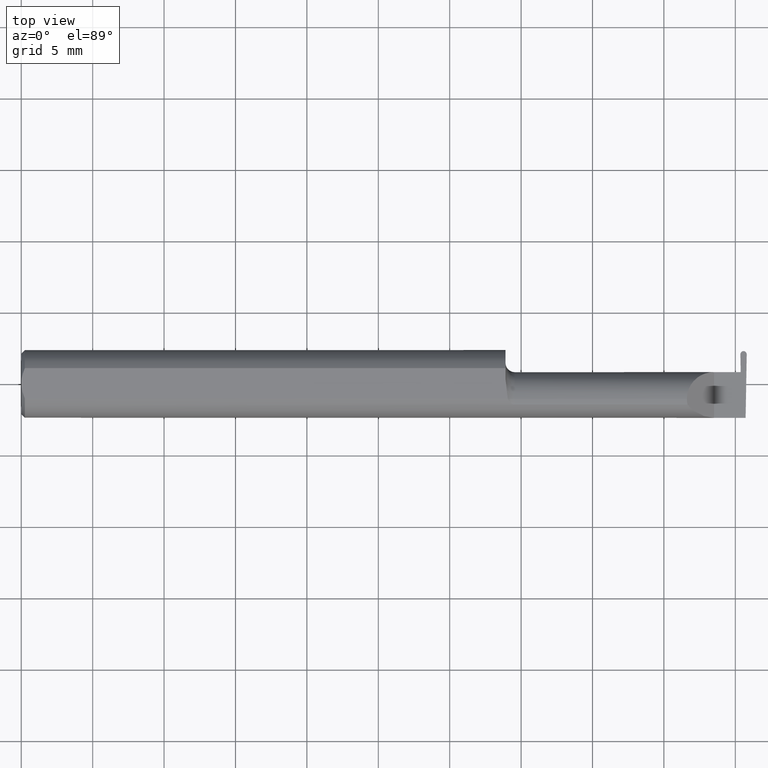
[diagram: clean part render]
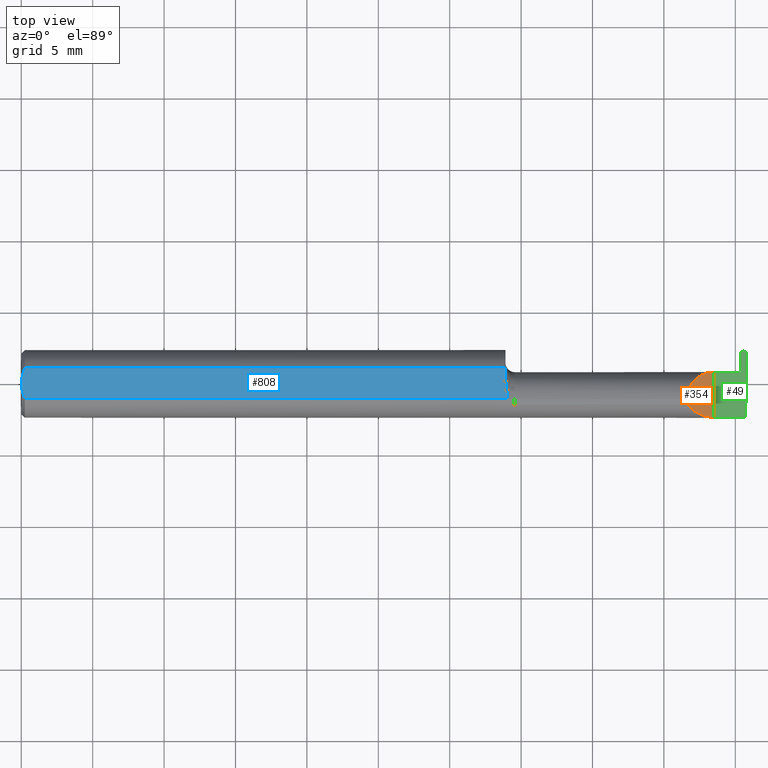
[diagram: same view with three faces highlighted in distinct colors, each labeled with its STEP entity id]
A machine part, top view with three faces highlighted in distinct colors.
Their STEP definitions:

[orange] entity #354 — the highlighted planar face has unit normal (-0.7071, 0, -0.7071).
#30 = CARTESIAN_POINT ( 'NONE',  ( 1.834999999999999520, -0.04260000000000003367, 0.07500000000000002498 ) ) ;
#70 = CARTESIAN_POINT ( 'NONE',  ( 1.836620632051321200, -0.05810704225352100044, 0.07337936794867835899 ) ) ;
#102 = CARTESIAN_POINT ( 'NONE',  ( 1.910000000000000142, -0.09360000000000005815, 1.102182119232621301E-17 ) ) ;
#127 = CARTESIAN_POINT ( 'NONE',  ( 1.854690286057536941, -0.08092595952420821026, 0.05530971394246249340 ) ) ;
#161 = CARTESIAN_POINT ( 'NONE',  ( 1.834999999999999520, -0.04781600192481529760, 0.07500000000000003886 ) ) ;
#187 = VERTEX_POINT ( 'NONE', #324 ) ;
#217 = PLANE ( 'NONE',  #552 ) ;
#223 = DIRECTION ( 'NONE',  ( -0.7071067811865507924, 0.000000000000000000, 0.7071067811865441310 ) ) ;
#232 = ORIENTED_EDGE ( 'NONE', *, *, #522, .T. ) ;
#247 = CARTESIAN_POINT ( 'NONE',  ( 1.836620632051321200, -0.05810704225352100044, 0.07337936794867835899 ) ) ;
#275 = CARTESIAN_POINT ( 'NONE',  ( 1.834999999999999298, 0.001333982822017827988, 0.07500000000000002498 ) ) ;
#283 = VERTEX_POINT ( 'NONE', #577 ) ;
#288 = CARTESIAN_POINT ( 'NONE',  ( 1.910000000000000142, 0.03239999999999997743, 8.143901214329935029E-17 ) ) ;
#303 = EDGE_CURVE ( 'NONE', #187, #612, #372, .T. ) ;
#311 =( BOUNDED_CURVE ( )  B_SPLINE_CURVE ( 3, ( #247, #725, #161, #409 ),
 .UNSPECIFIED., .F., .T. ) 
 B_SPLINE_CURVE_WITH_KNOTS ( ( 4, 4 ),
 ( 6.074922494366331804, 6.283185307179586232 ),
 .UNSPECIFIED. ) 
 CURVE ( )  GEOMETRIC_REPRESENTATION_ITEM ( )  RATIONAL_B_SPLINE_CURVE ( ( 1.000000000000000000, 0.9963888149483995926, 0.9963888149483995926, 1.000000000000000000 ) ) 
 REPRESENTATION_ITEM ( '' )  );
#315 = VECTOR ( 'NONE', #581, 39.37007874015748143 ) ;
#324 = CARTESIAN_POINT ( 'NONE',  ( 1.834999999999999520, -0.04260000000000003367, 0.07500000000000002498 ) ) ;
#346 = CARTESIAN_POINT ( 'NONE',  ( 1.910000000000000142, -0.2500000000000000555, 1.102182119232621301E-17 ) ) ;
#354 = ADVANCED_FACE ( 'NONE', ( #779 ), #217, .F. ) ;
#357 = CARTESIAN_POINT ( 'NONE',  ( 1.866066017177981706, 0.03239999999999996355, 0.04393398282201791544 ) ) ;
#371 = CARTESIAN_POINT ( 'NONE',  ( 1.910000000000000142, -0.09360000000000005815, 1.102182119232621301E-17 ) ) ;
#372 =( BOUNDED_CURVE ( )  B_SPLINE_CURVE ( 3, ( #30, #275, #357, #288 ),
 .UNSPECIFIED., .F., .T. ) 
 B_SPLINE_CURVE_WITH_KNOTS ( ( 4, 4 ),
 ( 0.000000000000000000, 1.570796326794896114 ),
 .UNSPECIFIED. ) 
 CURVE ( )  GEOMETRIC_REPRESENTATION_ITEM ( )  RATIONAL_B_SPLINE_CURVE ( ( 1.000000000000000000, 0.8047378541243650485, 0.8047378541243650485, 1.000000000000000000 ) ) 
 REPRESENTATION_ITEM ( '' )  );
#409 = CARTESIAN_POINT ( 'NONE',  ( 1.834999999999999520, -0.04260000000000003367, 0.07500000000000002498 ) ) ;
#470 = DIRECTION ( 'NONE',  ( -0.7071067811865442421, 0.000000000000000000, -0.7071067811865509034 ) ) ;
#494 = ORIENTED_EDGE ( 'NONE', *, *, #517, .F. ) ;
#514 = CARTESIAN_POINT ( 'NONE',  ( 1.910000000000000142, -0.2500000000000000555, 1.102182119232621301E-17 ) ) ;
#517 = EDGE_CURVE ( 'NONE', #604, #283, #595, .T. ) ;
#522 = EDGE_CURVE ( 'NONE', #604, #612, #691, .T. ) ;
#541 = EDGE_LOOP ( 'NONE', ( #607, #494, #232, #636 ) ) ;
#552 = AXIS2_PLACEMENT_3D ( 'NONE', #346, #470, #223 ) ;
#577 = CARTESIAN_POINT ( 'NONE',  ( 1.836620632051321200, -0.05810704225352100044, 0.07337936794867835899 ) ) ;
#581 = DIRECTION ( 'NONE',  ( -0.000000000000000000, 1.000000000000000000, -0.000000000000000000 ) ) ;
#595 =( BOUNDED_CURVE ( )  B_SPLINE_CURVE ( 3, ( #371, #695, #127, #70 ),
 .UNSPECIFIED., .F., .T. ) 
 B_SPLINE_CURVE_WITH_KNOTS ( ( 4, 4 ),
 ( 4.712388980384689674, 5.613420356061720184 ),
 .UNSPECIFIED. ) 
 CURVE ( )  GEOMETRIC_REPRESENTATION_ITEM ( )  RATIONAL_B_SPLINE_CURVE ( ( 1.000000000000000000, 0.9334817841311873199, 0.9334817841311873199, 1.000000000000000000 ) ) 
 REPRESENTATION_ITEM ( '' )  );
#604 = VERTEX_POINT ( 'NONE', #102 ) ;
#607 = ORIENTED_EDGE ( 'NONE', *, *, #664, .F. ) ;
#612 = VERTEX_POINT ( 'NONE', #790 ) ;
#636 = ORIENTED_EDGE ( 'NONE', *, *, #303, .F. ) ;
#664 = EDGE_CURVE ( 'NONE', #283, #187, #311, .T. ) ;
#691 = LINE ( 'NONE', #514, #315 ) ;
#695 = CARTESIAN_POINT ( 'NONE',  ( 1.880893035518782730, -0.09359999999999997489, 0.02910696448121682239 ) ) ;
#725 = CARTESIAN_POINT ( 'NONE',  ( 1.835542168554753717, -0.05300374992736055918, 0.07445783144524575903 ) ) ;
#779 = FACE_OUTER_BOUND ( 'NONE', #541, .T. ) ;
#790 = CARTESIAN_POINT ( 'NONE',  ( 1.910000000000000142, 0.03239999999999997743, 8.143901214329935029E-17 ) ) ;

[blue] entity #808 — the highlighted planar face has unit normal (0, 0, 1).
#12 = CARTESIAN_POINT ( 'NONE',  ( 0.009999999999999877043, -0.04209513035969864037, 0.08359999999999988274 ) ) ;
#14 = ORIENTED_EDGE ( 'NONE', *, *, #16, .F. ) ;
#16 = EDGE_CURVE ( 'NONE', #321, #549, #771, .T. ) ;
#18 = EDGE_LOOP ( 'NONE', ( #692, #405, #481, #192, #14, #554 ) ) ;
#20 = EDGE_CURVE ( 'NONE', #751, #537, #33, .T. ) ;
#33 = LINE ( 'NONE', #279, #796 ) ;
#41 = EDGE_CURVE ( 'NONE', #144, #751, #671, .T. ) ;
#51 = CARTESIAN_POINT ( 'NONE',  ( 1.339570820222979908, -0.02392027542784326555, 0.08359999999999992437 ) ) ;
#77 = CARTESIAN_POINT ( 'NONE',  ( 1.334999999999999742, 0.01227294415283365983, 0.08359999999999991049 ) ) ;
#85 = EDGE_CURVE ( 'NONE', #537, #549, #490, .T. ) ;
#87 = CARTESIAN_POINT ( 'NONE',  ( 0.000000000000000000, 0.000000000000000000, 0.08359999999999991049 ) ) ;
#94 = CARTESIAN_POINT ( 'NONE',  ( 0.009999999999999877043, 0.04209513035969864037, 0.08359999999999988274 ) ) ;
#105 = CARTESIAN_POINT ( 'NONE',  ( 0.000000000000000000, 0.04209513035969864037, 0.08359999999999988274 ) ) ;
#113 = CARTESIAN_POINT ( 'NONE',  ( 1.336463898467977085, -0.005727447913487409940, 0.08359999999999991049 ) ) ;
#144 = VERTEX_POINT ( 'NONE', #419 ) ;
#151 = CARTESIAN_POINT ( 'NONE',  ( -2.524841811771306987E-16, 0.007317304829308914245, 0.08359999999999991049 ) ) ;
#156 = EDGE_CURVE ( 'NONE', #485, #144, #613, .T. ) ;
#183 = PLANE ( 'NONE',  #439 ) ;
#184 = EDGE_CURVE ( 'NONE', #485, #321, #434, .T. ) ;
#192 = ORIENTED_EDGE ( 'NONE', *, *, #85, .T. ) ;
#201 = CARTESIAN_POINT ( 'NONE',  ( 0.004072204388638606815, -0.02891446873729326336, 0.08359999999999991049 ) ) ;
#261 = CARTESIAN_POINT ( 'NONE',  ( 1.334999999999999742, 0.04209513035969864037, 0.08359999999999988274 ) ) ;
#279 = CARTESIAN_POINT ( 'NONE',  ( 1.334999999999999742, 0.09360000000000005815, 0.08359999999999991049 ) ) ;
#300 = CARTESIAN_POINT ( 'NONE',  ( 1.334999999999999742, 0.01227294415283365983, 0.08359999999999991049 ) ) ;
#321 = VERTEX_POINT ( 'NONE', #480 ) ;
#355 = DIRECTION ( 'NONE',  ( -1.000000000000000000, -0.000000000000000000, -0.000000000000000000 ) ) ;
#360 = DIRECTION ( 'NONE',  ( 1.000000000000000000, 0.000000000000000000, 0.000000000000000000 ) ) ;
#365 = CARTESIAN_POINT ( 'NONE',  ( 1.341082007218903360, -0.03301619840524120525, 0.08359999999999991049 ) ) ;
#386 = CARTESIAN_POINT ( 'NONE',  ( 0.009999999999999877043, 0.04209513035969864037, 0.08359999999999988274 ) ) ;
#401 = CARTESIAN_POINT ( 'NONE',  ( 0.007036739039485552169, 0.03550621559607058941, 0.08359999999999991049 ) ) ;
#405 = ORIENTED_EDGE ( 'NONE', *, *, #41, .T. ) ;
#411 = VECTOR ( 'NONE', #360, 39.37007874015748143 ) ;
#419 = CARTESIAN_POINT ( 'NONE',  ( 1.341129652885479251, -0.04209513035970115225, 0.08359999999999991049 ) ) ;
#429 = CARTESIAN_POINT ( 'NONE',  ( 1.334999999999999742, 0.003280657920457198933, 0.08359999999999991049 ) ) ;
#434 = B_SPLINE_CURVE_WITH_KNOTS ( 'NONE', 3,
 ( #12, #201, #645, #87 ),
 .UNSPECIFIED., .F., .F.,
 ( 4, 4 ),
 ( 0.0006429768761302129395, 0.001744210492668866585 ),
 .UNSPECIFIED. ) ;
#439 = AXIS2_PLACEMENT_3D ( 'NONE', #511, #450, #575 ) ;
#450 = DIRECTION ( 'NONE',  ( 0.000000000000000000, 0.000000000000000000, 1.000000000000000000 ) ) ;
#468 = CARTESIAN_POINT ( 'NONE',  ( 0.0009807498324115706059, 0.01453516766257749622, 0.08359999999999992437 ) ) ;
#480 = CARTESIAN_POINT ( 'NONE',  ( 0.000000000000000000, 0.000000000000000000, 0.08359999999999991049 ) ) ;
#481 = ORIENTED_EDGE ( 'NONE', *, *, #20, .T. ) ;
#485 = VERTEX_POINT ( 'NONE', #750 ) ;
#490 = LINE ( 'NONE', #105, #556 ) ;
#511 = CARTESIAN_POINT ( 'NONE',  ( 2.191425808082400728, 0.09360000000000005815, 0.08359999999999991049 ) ) ;
#531 = DIRECTION ( 'NONE',  ( 0.000000000000000000, 1.000000000000000000, 0.000000000000000000 ) ) ;
#537 = VERTEX_POINT ( 'NONE', #261 ) ;
#542 = CARTESIAN_POINT ( 'NONE',  ( 1.341129652885479251, -0.04209513035970115225, 0.08359999999999991049 ) ) ;
#549 = VERTEX_POINT ( 'NONE', #386 ) ;
#554 = ORIENTED_EDGE ( 'NONE', *, *, #184, .F. ) ;
#556 = VECTOR ( 'NONE', #355, 39.37007874015748143 ) ;
#575 = DIRECTION ( 'NONE',  ( 1.000000000000000000, 0.000000000000000000, -0.000000000000000000 ) ) ;
#613 = LINE ( 'NONE', #679, #411 ) ;
#645 = CARTESIAN_POINT ( 'NONE',  ( -2.417970307672167282E-16, -0.01462709520273677843, 0.08359999999999991049 ) ) ;
#671 = B_SPLINE_CURVE_WITH_KNOTS ( 'NONE', 3,
 ( #542, #365, #51, #113, #429, #300 ),
 .UNSPECIFIED., .F., .F.,
 ( 4, 2, 4 ),
 ( 0.009672910729349558021, 0.01035804079918432874, 0.01104317086901910119 ),
 .UNSPECIFIED. ) ;
#679 = CARTESIAN_POINT ( 'NONE',  ( 0.000000000000000000, -0.04209513035969864037, 0.08359999999999988274 ) ) ;
#692 = ORIENTED_EDGE ( 'NONE', *, *, #156, .T. ) ;
#718 = CARTESIAN_POINT ( 'NONE',  ( 0.004492168231814515009, 0.02859366993844193044, 0.08359999999999991049 ) ) ;
#749 = FACE_OUTER_BOUND ( 'NONE', #18, .T. ) ;
#750 = CARTESIAN_POINT ( 'NONE',  ( 0.009999999999999877043, -0.04209513035969864037, 0.08359999999999988274 ) ) ;
#751 = VERTEX_POINT ( 'NONE', #77 ) ;
#771 = B_SPLINE_CURVE_WITH_KNOTS ( 'NONE', 3,
 ( #777, #151, #468, #718, #401, #94 ),
 .UNSPECIFIED., .F., .F.,
 ( 4, 2, 4 ),
 ( 0.001744210492668866585, 0.002295110172257195866, 0.002846009851845525147 ),
 .UNSPECIFIED. ) ;
#777 = CARTESIAN_POINT ( 'NONE',  ( 0.000000000000000000, 0.000000000000000000, 0.08359999999999991049 ) ) ;
#796 = VECTOR ( 'NONE', #531, 39.37007874015748143 ) ;
#808 = ADVANCED_FACE ( 'NONE', ( #749 ), #183, .T. ) ;

[green] entity #49 — the highlighted planar face has unit normal (-0, 0, -1).
#3 = EDGE_CURVE ( 'NONE', #665, #741, #28, .T. ) ;
#19 = DIRECTION ( 'NONE',  ( 1.000000000000000000, -0.000000000000000000, -0.000000000000000000 ) ) ;
#28 = LINE ( 'NONE', #527, #385 ) ;
#37 =( BOUNDED_CURVE ( )  B_SPLINE_CURVE ( 3, ( #467, #396, #79, #774 ),
 .UNSPECIFIED., .F., .T. ) 
 B_SPLINE_CURVE_WITH_KNOTS ( ( 4, 4 ),
 ( 6.177091236413993158, 7.752341154236731313 ),
 .UNSPECIFIED. ) 
 CURVE ( )  GEOMETRIC_REPRESENTATION_ITEM ( )  RATIONAL_B_SPLINE_CURVE ( ( 1.000000000000000000, 0.8036869647627038482, 0.8036869647627038482, 1.000000000000000000 ) ) 
 REPRESENTATION_ITEM ( '' )  );
#38 = VECTOR ( 'NONE', #742, 39.37007874015748143 ) ;
#49 = ADVANCED_FACE ( 'NONE', ( #482 ), #728, .F. ) ;
#53 = EDGE_CURVE ( 'NONE', #741, #253, #71, .T. ) ;
#71 = LINE ( 'NONE', #608, #38 ) ;
#76 = CARTESIAN_POINT ( 'NONE',  ( -3.937007874047004035E-05, 0.09039999999999999425, 0.000000000000000000 ) ) ;
#79 = CARTESIAN_POINT ( 'NONE',  ( 1.982395095373120864, 0.08652078431768195355, 1.083994772031835482E-18 ) ) ;
#99 = EDGE_CURVE ( 'NONE', #418, #604, #631, .T. ) ;
#102 = CARTESIAN_POINT ( 'NONE',  ( 1.910000000000000142, -0.09360000000000005815, 1.102182119232621301E-17 ) ) ;
#110 = CARTESIAN_POINT ( 'NONE',  ( 1.999990968925781987, 0.08104697476785366339, 0.000000000000000000 ) ) ;
#135 = EDGE_CURVE ( 'NONE', #433, #281, #174, .T. ) ;
#139 = EDGE_CURVE ( 'NONE', #612, #665, #194, .T. ) ;
#160 = ORIENTED_EDGE ( 'NONE', *, *, #3, .F. ) ;
#162 = CARTESIAN_POINT ( 'NONE',  ( 1.996942494641693600, -0.09360000000000001652, 0.000000000000000000 ) ) ;
#174 =( BOUNDED_CURVE ( )  B_SPLINE_CURVE ( 3, ( #110, #444, #486, #380 ),
 .UNSPECIFIED., .F., .T. ) 
 B_SPLINE_CURVE_WITH_KNOTS ( ( 4, 4 ),
 ( 1.672436806532650477, 3.247686724355353771 ),
 .UNSPECIFIED. ) 
 CURVE ( )  GEOMETRIC_REPRESENTATION_ITEM ( )  RATIONAL_B_SPLINE_CURVE ( ( 1.000000000000000000, 0.8036869647627119528, 0.8036869647627119528, 1.000000000000000000 ) ) 
 REPRESENTATION_ITEM ( '' )  );
#175 = CARTESIAN_POINT ( 'NONE',  ( 1.999990968925781987, 0.08104697476785366339, 0.000000000000000000 ) ) ;
#177 = EDGE_CURVE ( 'NONE', #503, #281, #634, .T. ) ;
#188 = CARTESIAN_POINT ( 'NONE',  ( 1.983339777177351770, 0.03239999999999999825, 0.000000000000000000 ) ) ;
#194 = LINE ( 'NONE', #789, #309 ) ;
#249 = EDGE_CURVE ( 'NONE', #503, #253, #37, .T. ) ;
#253 = VERTEX_POINT ( 'NONE', #713 ) ;
#254 = CARTESIAN_POINT ( 'NONE',  ( 2.999519565323742037E-32, -0.09359999999999998876, 2.449293598294716768E-16 ) ) ;
#256 = AXIS2_PLACEMENT_3D ( 'NONE', #495, #550, #806 ) ;
#278 = ORIENTED_EDGE ( 'NONE', *, *, #177, .F. ) ;
#281 = VERTEX_POINT ( 'NONE', #388 ) ;
#290 = DIRECTION ( 'NONE',  ( 1.000000000000000000, 0.000000000000000000, 0.000000000000000000 ) ) ;
#302 = ORIENTED_EDGE ( 'NONE', *, *, #522, .F. ) ;
#308 = CARTESIAN_POINT ( 'NONE',  ( 1.999998665932175124, 0.08148793596879662371, 0.000000000000000000 ) ) ;
#309 = VECTOR ( 'NONE', #290, 39.37007874015748143 ) ;
#315 = VECTOR ( 'NONE', #581, 39.37007874015748143 ) ;
#358 = VECTOR ( 'NONE', #446, 39.37007874015748143 ) ;
#380 = CARTESIAN_POINT ( 'NONE',  ( 1.991358560907506181, 0.09039999999999999425, 0.000000000000000000 ) ) ;
#382 = LINE ( 'NONE', #308, #358 ) ;
#385 = VECTOR ( 'NONE', #657, 39.37007874015748143 ) ;
#388 = CARTESIAN_POINT ( 'NONE',  ( 1.991358560907506181, 0.09039999999999999425, 0.000000000000000000 ) ) ;
#393 = ORIENTED_EDGE ( 'NONE', *, *, #53, .F. ) ;
#396 = CARTESIAN_POINT ( 'NONE',  ( 1.985975431331754582, 0.09040000000000004976, 6.455300748704941787E-19 ) ) ;
#418 = VERTEX_POINT ( 'NONE', #162 ) ;
#433 = VERTEX_POINT ( 'NONE', #175 ) ;
#444 = CARTESIAN_POINT ( 'NONE',  ( 2.000086514626878920, 0.08652078431768180089, -1.083994772031833170E-18 ) ) ;
#446 = DIRECTION ( 'NONE',  ( -0.01745240643727645827, -0.9998476951563912696, 0.000000000000000000 ) ) ;
#456 = VECTOR ( 'NONE', #684, 39.37007874015748143 ) ;
#458 = EDGE_LOOP ( 'NONE', ( #278, #793, #393, #160, #593, #302, #557, #643, #727 ) ) ;
#467 = CARTESIAN_POINT ( 'NONE',  ( 1.991123049092493824, 0.09039999999999999425, 0.000000000000000000 ) ) ;
#482 = FACE_OUTER_BOUND ( 'NONE', #458, .T. ) ;
#486 = CARTESIAN_POINT ( 'NONE',  ( 1.996506178668245202, 0.09039999999999985547, -6.455300748705104528E-19 ) ) ;
#495 = CARTESIAN_POINT ( 'NONE',  ( 2.000000000000000000, -0.2500000000000000555, 0.000000000000000000 ) ) ;
#503 = VERTEX_POINT ( 'NONE', #620 ) ;
#514 = CARTESIAN_POINT ( 'NONE',  ( 1.910000000000000142, -0.2500000000000000555, 1.102182119232621301E-17 ) ) ;
#522 = EDGE_CURVE ( 'NONE', #604, #612, #691, .T. ) ;
#527 = CARTESIAN_POINT ( 'NONE',  ( 1.983339777177351770, 0.03239999999999999825, 0.000000000000000000 ) ) ;
#550 = DIRECTION ( 'NONE',  ( -1.224646799147358877E-16, 0.000000000000000000, -1.000000000000000000 ) ) ;
#557 = ORIENTED_EDGE ( 'NONE', *, *, #99, .F. ) ;
#581 = DIRECTION ( 'NONE',  ( -0.000000000000000000, 1.000000000000000000, -0.000000000000000000 ) ) ;
#593 = ORIENTED_EDGE ( 'NONE', *, *, #139, .F. ) ;
#604 = VERTEX_POINT ( 'NONE', #102 ) ;
#608 = CARTESIAN_POINT ( 'NONE',  ( 1.982482944067824659, 0.08148793596879662371, 0.000000000000000000 ) ) ;
#612 = VERTEX_POINT ( 'NONE', #790 ) ;
#620 = CARTESIAN_POINT ( 'NONE',  ( 1.991123049092493824, 0.09039999999999999425, 0.000000000000000000 ) ) ;
#631 = LINE ( 'NONE', #254, #456 ) ;
#634 = LINE ( 'NONE', #76, #716 ) ;
#643 = ORIENTED_EDGE ( 'NONE', *, *, #755, .F. ) ;
#657 = DIRECTION ( 'NONE',  ( 1.000000000000000000, -0.000000000000000000, -0.000000000000000000 ) ) ;
#665 = VERTEX_POINT ( 'NONE', #667 ) ;
#667 = CARTESIAN_POINT ( 'NONE',  ( 1.977327383411515482, 0.03239999999999999825, 0.000000000000000000 ) ) ;
#684 = DIRECTION ( 'NONE',  ( -1.000000000000000000, -0.000000000000000000, -0.000000000000000000 ) ) ;
#691 = LINE ( 'NONE', #514, #315 ) ;
#713 = CARTESIAN_POINT ( 'NONE',  ( 1.982490641074217796, 0.08104697476785364951, 0.000000000000000000 ) ) ;
#716 = VECTOR ( 'NONE', #19, 39.37007874015748143 ) ;
#727 = ORIENTED_EDGE ( 'NONE', *, *, #135, .T. ) ;
#728 = PLANE ( 'NONE',  #256 ) ;
#741 = VERTEX_POINT ( 'NONE', #188 ) ;
#742 = DIRECTION ( 'NONE',  ( -0.01745240643727688848, 0.9998476951563912696, -0.000000000000000000 ) ) ;
#755 = EDGE_CURVE ( 'NONE', #433, #418, #382, .T. ) ;
#774 = CARTESIAN_POINT ( 'NONE',  ( 1.982490641074217796, 0.08104697476785364951, 0.000000000000000000 ) ) ;
#789 = CARTESIAN_POINT ( 'NONE',  ( 1.334999999999999742, 0.03239999999999997743, 8.143901214329935029E-17 ) ) ;
#790 = CARTESIAN_POINT ( 'NONE',  ( 1.910000000000000142, 0.03239999999999997743, 8.143901214329935029E-17 ) ) ;
#793 = ORIENTED_EDGE ( 'NONE', *, *, #249, .T. ) ;
#806 = DIRECTION ( 'NONE',  ( -1.000000000000000000, 0.000000000000000000, 1.224646799147358877E-16 ) ) ;